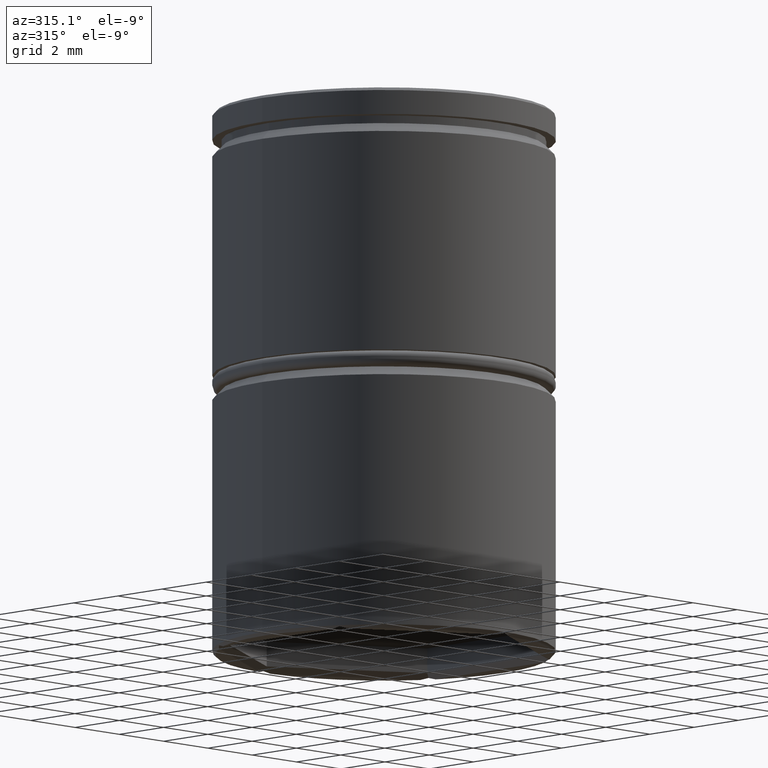
[diagram: clean part render]
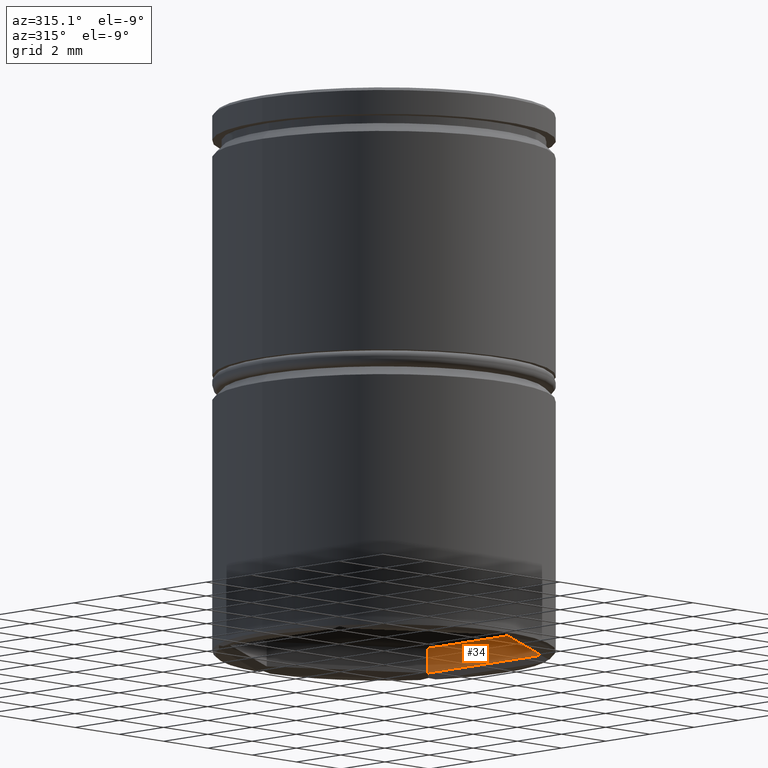
[diagram: same view with one face highlighted and labeled with its STEP entity id]
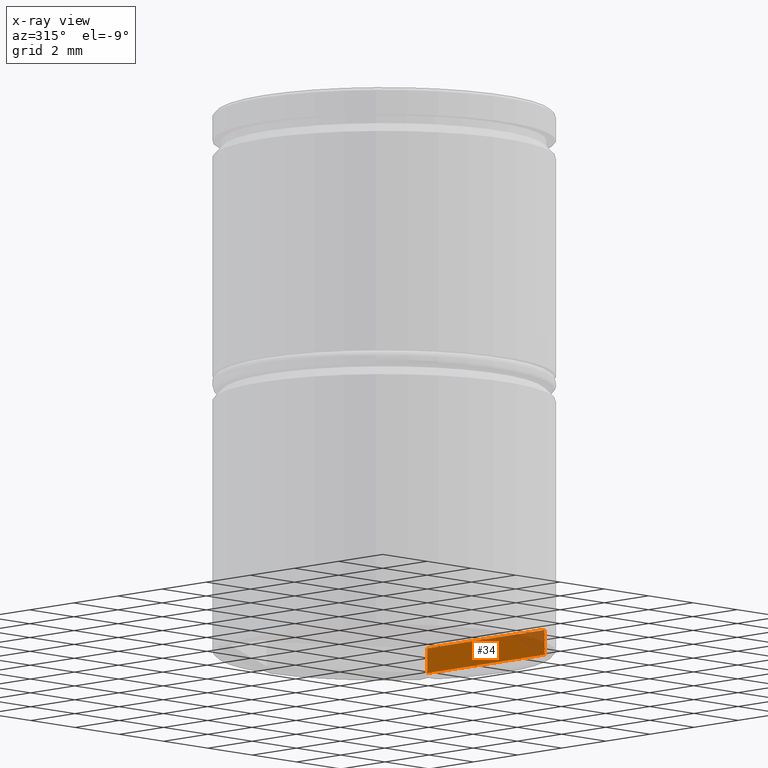
[diagram: x-ray of the same camera — body ghosted, the highlighted face saturated]
A machine part, auxiliary view. The second image highlights one B-rep face of the part: STEP entity #34.
The next image is the same camera in x-ray: the body ghosted, the highlighted face saturated — about 16% of this face is hidden behind the body in this view.
In plain terms, the highlighted planar face has unit normal (1, 0, -0).
Its self-contained STEP definition (entity closure, byte-faithful):
#25 = CARTESIAN_POINT ( 'NONE',  ( 4.600000000000003197, 2.655811238272278718, -16.50000000000000000 ) ) ;
#34 = ADVANCED_FACE ( 'NONE', ( #981 ), #679, .F. ) ;
#35 = ORIENTED_EDGE ( 'NONE', *, *, #195, .T. ) ;
#37 = CARTESIAN_POINT ( 'NONE',  ( 4.600000000000003197, 2.655811238272278718, -17.30000000000000426 ) ) ;
#54 = VECTOR ( 'NONE', #1359, 1000.000000000000000 ) ;
#91 = EDGE_CURVE ( 'NONE', #473, #1225, #666, .T. ) ;
#195 = EDGE_CURVE ( 'NONE', #944, #392, #477, .T. ) ;
#223 = DIRECTION ( 'NONE',  ( -0.000000000000000000, 0.000000000000000000, -1.000000000000000000 ) ) ;
#269 = CARTESIAN_POINT ( 'NONE',  ( 4.600000000000003197, -2.655811238272280050, -16.50000000000000000 ) ) ;
#317 = LINE ( 'NONE', #1176, #595 ) ;
#328 = DIRECTION ( 'NONE',  ( -0.000000000000000000, -0.000000000000000000, -1.000000000000000000 ) ) ;
#344 = EDGE_CURVE ( 'NONE', #473, #944, #540, .T. ) ;
#392 = VERTEX_POINT ( 'NONE', #656 ) ;
#422 = DIRECTION ( 'NONE',  ( -0.000000000000000000, -0.000000000000000000, -1.000000000000000000 ) ) ;
#473 = VERTEX_POINT ( 'NONE', #474 ) ;
#474 = CARTESIAN_POINT ( 'NONE',  ( 4.600000000000003197, 2.655811238272278718, -16.50000000000000000 ) ) ;
#477 = LINE ( 'NONE', #1118, #54 ) ;
#540 = LINE ( 'NONE', #545, #571 ) ;
#545 = CARTESIAN_POINT ( 'NONE',  ( 4.600000000000003197, 2.655811238272278718, -16.50000000000000000 ) ) ;
#571 = VECTOR ( 'NONE', #328, 1000.000000000000000 ) ;
#595 = VECTOR ( 'NONE', #422, 1000.000000000000000 ) ;
#621 = ORIENTED_EDGE ( 'NONE', *, *, #91, .F. ) ;
#656 = CARTESIAN_POINT ( 'NONE',  ( 4.600000000000003197, -2.655811238272280050, -17.30000000000000426 ) ) ;
#666 = LINE ( 'NONE', #25, #1251 ) ;
#679 = PLANE ( 'NONE',  #720 ) ;
#720 = AXIS2_PLACEMENT_3D ( 'NONE', #766, #1174, #223 ) ;
#766 = CARTESIAN_POINT ( 'NONE',  ( 4.600000000000003197, 2.655811238272278718, -16.50000000000000000 ) ) ;
#807 = ORIENTED_EDGE ( 'NONE', *, *, #344, .T. ) ;
#841 = EDGE_CURVE ( 'NONE', #1225, #392, #317, .T. ) ;
#898 = EDGE_LOOP ( 'NONE', ( #807, #35, #1111, #621 ) ) ;
#944 = VERTEX_POINT ( 'NONE', #37 ) ;
#981 = FACE_OUTER_BOUND ( 'NONE', #898, .T. ) ;
#996 = DIRECTION ( 'NONE',  ( 0.000000000000000000, -1.000000000000000000, 0.000000000000000000 ) ) ;
#1111 = ORIENTED_EDGE ( 'NONE', *, *, #841, .F. ) ;
#1118 = CARTESIAN_POINT ( 'NONE',  ( 4.600000000000003197, -2.655811238272280050, -17.30000000000000426 ) ) ;
#1174 = DIRECTION ( 'NONE',  ( 1.000000000000000000, 0.000000000000000000, -0.000000000000000000 ) ) ;
#1176 = CARTESIAN_POINT ( 'NONE',  ( 4.600000000000003197, -2.655811238272280050, -16.50000000000000000 ) ) ;
#1225 = VERTEX_POINT ( 'NONE', #269 ) ;
#1251 = VECTOR ( 'NONE', #996, 1000.000000000000000 ) ;
#1359 = DIRECTION ( 'NONE',  ( 0.000000000000000000, -1.000000000000000000, 0.000000000000000000 ) ) ;